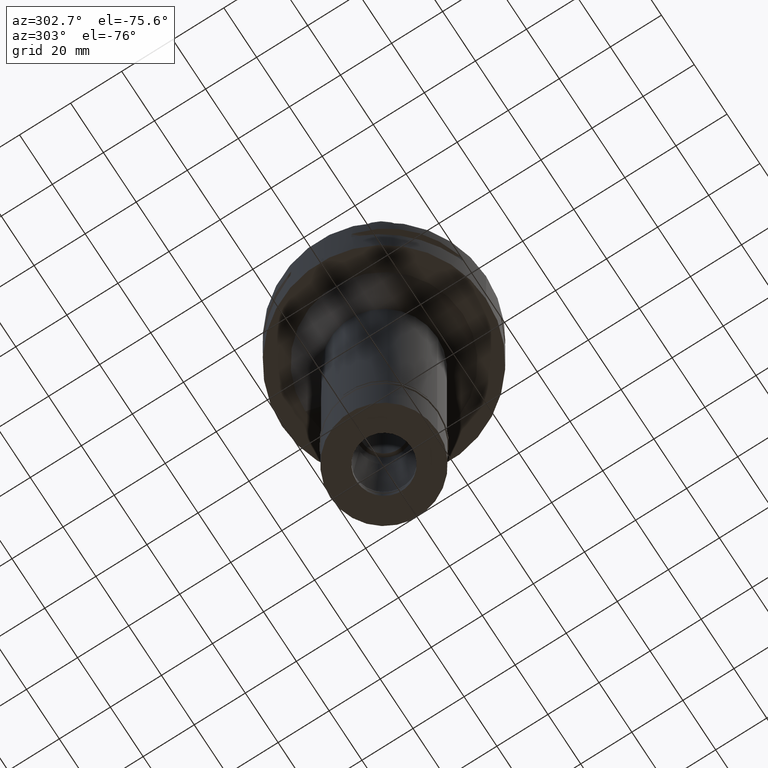
[diagram: clean part render]
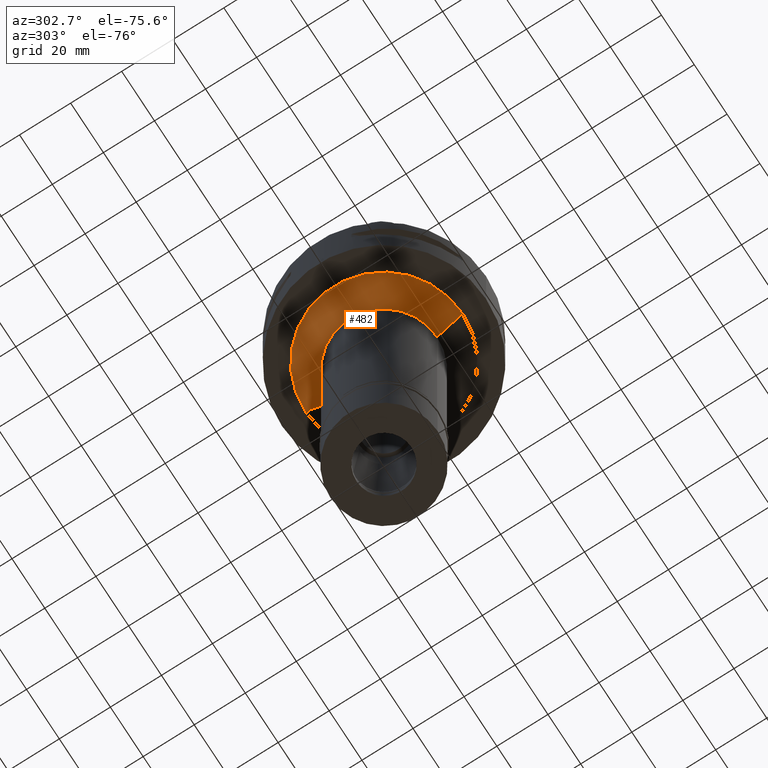
[diagram: same view with one face highlighted and labeled with its STEP entity id]
A machine part, auxiliary view. The second image highlights one B-rep face of the part: STEP entity #482.
In plain terms, the highlighted conical surface has half-angle 45 deg.
Its self-contained STEP definition (entity closure, byte-faithful):
#21 = VERTEX_POINT ( 'NONE', #4106 ) ;
#172 = CARTESIAN_POINT ( 'NONE',  ( 0.0000000000000000000, -30.80000000000000071, -30.00000000000000000 ) ) ;
#242 = AXIS2_PLACEMENT_3D ( 'NONE', #1596, #3307, #844 ) ;
#277 = CARTESIAN_POINT ( 'NONE',  ( 0.0000000000000000000, 0.0000000000000000000, -30.00000000000000000 ) ) ;
#457 = ORIENTED_EDGE ( 'NONE', *, *, #668, .T. ) ;
#482 = ADVANCED_FACE ( 'NONE', ( #4308 ), #4039, .T. ) ;
#563 = ORIENTED_EDGE ( 'NONE', *, *, #1198, .T. ) ;
#668 = EDGE_CURVE ( 'NONE', #3304, #1603, #2017, .T. ) ;
#844 = DIRECTION ( 'NONE',  ( 0.0000000000000000000, 1.000000000000000000, 0.0000000000000000000 ) ) ;
#1149 = CARTESIAN_POINT ( 'NONE',  ( 0.0000000000000000000, 20.80000000000000071, -40.00000000000000000 ) ) ;
#1198 = EDGE_CURVE ( 'NONE', #3582, #3304, #1873, .T. ) ;
#1289 = DIRECTION ( 'NONE',  ( 0.0000000000000000000, -1.000000000000000000, 0.0000000000000000000 ) ) ;
#1596 = CARTESIAN_POINT ( 'NONE',  ( 0.0000000000000000000, 0.0000000000000000000, -35.00000000000000000 ) ) ;
#1603 = VERTEX_POINT ( 'NONE', #1149 ) ;
#1781 = CARTESIAN_POINT ( 'NONE',  ( 0.0000000000000000000, 30.80000000000000071, -30.00000000000000000 ) ) ;
#1847 = DIRECTION ( 'NONE',  ( 0.0000000000000000000, 0.0000000000000000000, -1.000000000000000000 ) ) ;
#1850 = LINE ( 'NONE', #5003, #2211 ) ;
#1873 = CIRCLE ( 'NONE', #2700, 30.80000000000000071 ) ;
#1902 = ORIENTED_EDGE ( 'NONE', *, *, #2959, .F. ) ;
#1980 = CIRCLE ( 'NONE', #2627, 20.80000000000000071 ) ;
#2017 = LINE ( 'NONE', #4060, #4602 ) ;
#2211 = VECTOR ( 'NONE', #3788, 1000.000000000000114 ) ;
#2447 = EDGE_LOOP ( 'NONE', ( #3912, #1902, #563, #457 ) ) ;
#2627 = AXIS2_PLACEMENT_3D ( 'NONE', #3262, #4836, #1289 ) ;
#2700 = AXIS2_PLACEMENT_3D ( 'NONE', #277, #1847, #3419 ) ;
#2959 = EDGE_CURVE ( 'NONE', #3582, #21, #1850, .T. ) ;
#3262 = CARTESIAN_POINT ( 'NONE',  ( 0.0000000000000000000, 0.0000000000000000000, -40.00000000000000000 ) ) ;
#3304 = VERTEX_POINT ( 'NONE', #1781 ) ;
#3307 = DIRECTION ( 'NONE',  ( 0.0000000000000000000, 0.0000000000000000000, 1.000000000000000000 ) ) ;
#3400 = EDGE_CURVE ( 'NONE', #21, #1603, #1980, .T. ) ;
#3419 = DIRECTION ( 'NONE',  ( 0.0000000000000000000, -1.000000000000000000, 0.0000000000000000000 ) ) ;
#3582 = VERTEX_POINT ( 'NONE', #172 ) ;
#3788 = DIRECTION ( 'NONE',  ( 0.0000000000000000000, 0.7071067811865474617, -0.7071067811865474617 ) ) ;
#3912 = ORIENTED_EDGE ( 'NONE', *, *, #3400, .F. ) ;
#4039 = CONICAL_SURFACE ( 'NONE', #242, 25.80000000000000071, 0.7853981633972997312 ) ;
#4060 = CARTESIAN_POINT ( 'NONE',  ( 0.0000000000000000000, 30.80000000000000071, -30.00000000000000000 ) ) ;
#4106 = CARTESIAN_POINT ( 'NONE',  ( 0.0000000000000000000, -20.80000000000000071, -40.00000000000000000 ) ) ;
#4308 = FACE_OUTER_BOUND ( 'NONE', #2447, .T. ) ;
#4418 = DIRECTION ( 'NONE',  ( 0.0000000000000000000, -0.7071067811865474617, -0.7071067811865474617 ) ) ;
#4602 = VECTOR ( 'NONE', #4418, 1000.000000000000114 ) ;
#4836 = DIRECTION ( 'NONE',  ( 0.0000000000000000000, 0.0000000000000000000, -1.000000000000000000 ) ) ;
#5003 = CARTESIAN_POINT ( 'NONE',  ( 0.0000000000000000000, -30.80000000000000071, -30.00000000000000000 ) ) ;